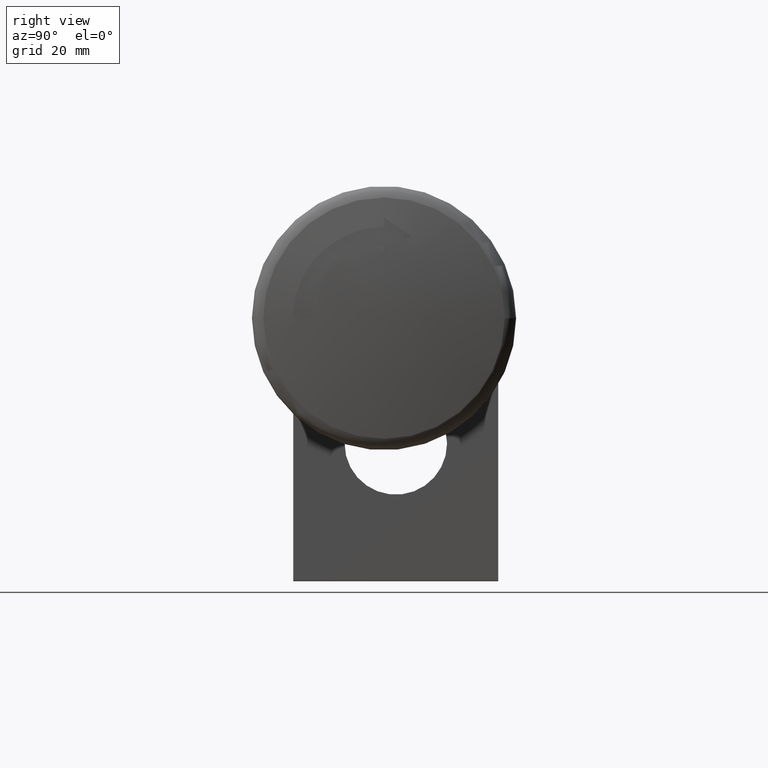
[diagram: clean part render]
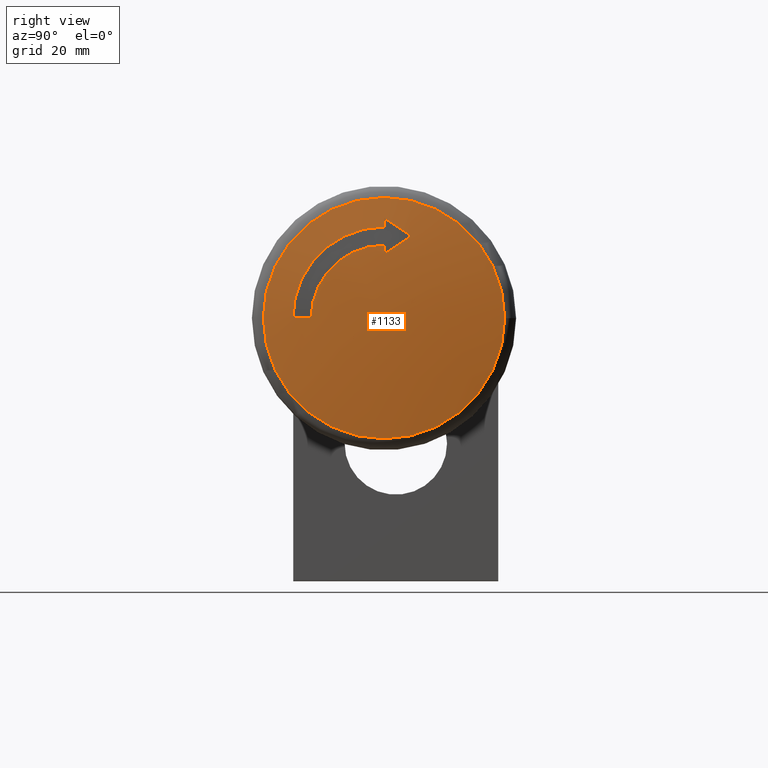
[diagram: same view with one face highlighted and labeled with its STEP entity id]
A machine part, right view. The second image highlights one B-rep face of the part: STEP entity #1133.
In plain terms, the highlighted spherical surface has radius 173 mm.
Its self-contained STEP definition (entity closure, byte-faithful):
#183=CARTESIAN_POINT('',(45.668461762672550,-19.495611931044859,16.0));
#184=VERTEX_POINT('',#183);
#185=CARTESIAN_POINT('',(45.668461762672550,-35.495611931044870,5.228103E-015));
#186=VERTEX_POINT('',#185);
#187=CARTESIAN_POINT('',(45.668461762672550,-19.495611931044870,0.0));
#188=DIRECTION('',(1.0,0.0,0.0));
#189=DIRECTION('',(0.0,1.0,0.0));
#190=AXIS2_PLACEMENT_3D('',#187,#188,#189);
#191=CIRCLE('',#190,16.0);
#192=EDGE_CURVE('',#184,#186,#191,.T.);
#215=CARTESIAN_POINT('',(45.249977022641623,-39.495611931044870,6.535128E-015));
#216=VERTEX_POINT('',#215);
#217=CARTESIAN_POINT('',(-126.590064876781840,-19.495611931044870,0.0));
#218=DIRECTION('',(0.0,0.0,-1.0));
#219=DIRECTION('',(0.0,-1.0,0.0));
#220=AXIS2_PLACEMENT_3D('',#217,#218,#219);
#221=CIRCLE('',#220,172.999999999987320);
#222=EDGE_CURVE('',#186,#216,#221,.T.);
#240=CARTESIAN_POINT('',(45.249977022641623,-19.495611931044859,20.0));
#241=VERTEX_POINT('',#240);
#242=CARTESIAN_POINT('',(45.249977022641623,-19.495611931044870,0.0));
#243=DIRECTION('',(-1.0,0.0,0.0));
#244=DIRECTION('',(0.0,-1.0,0.0));
#245=AXIS2_PLACEMENT_3D('',#242,#243,#244);
#246=CIRCLE('',#245,20.0);
#247=EDGE_CURVE('',#216,#241,#246,.T.);
#265=CARTESIAN_POINT('',(45.005389608456845,-19.495611931044859,22.0));
#266=VERTEX_POINT('',#265);
#267=CARTESIAN_POINT('',(-126.590064876781840,-19.495611931044881,1.009116E-029));
#268=DIRECTION('',(0.0,-1.0,0.0));
#269=DIRECTION('',(0.0,0.0,1.0));
#270=AXIS2_PLACEMENT_3D('',#267,#268,#269);
#271=CIRCLE('',#270,172.999999999987320);
#272=EDGE_CURVE('',#241,#266,#271,.T.);
#290=CARTESIAN_POINT('',(45.842530649689373,-19.495611931044866,14.0));
#291=VERTEX_POINT('',#290);
#292=CARTESIAN_POINT('',(-126.590064876781840,-19.495611931044870,1.305360E-030));
#293=DIRECTION('',(0.0,-1.0,0.0));
#294=DIRECTION('',(0.0,0.0,1.0));
#295=AXIS2_PLACEMENT_3D('',#292,#293,#294);
#296=CIRCLE('',#295,172.999999999987320);
#297=EDGE_CURVE('',#291,#184,#296,.T.);
#315=CARTESIAN_POINT('',(45.366324943415322,-13.495611931044863,18.0));
#316=VERTEX_POINT('',#315);
#317=CARTESIAN_POINT('',(-126.590064876781840,-25.957150392583330,9.692307692307697));
#318=DIRECTION('',(0.0,0.554700196225228,-0.832050294337844));
#319=DIRECTION('',(0.0,-0.832050294337844,-0.554700196225229));
#320=AXIS2_PLACEMENT_3D('',#317,#318,#319);
#321=CIRCLE('',#320,172.607380179131670);
#322=EDGE_CURVE('',#316,#291,#321,.T.);
#340=CARTESIAN_POINT('',(-126.590064876781840,-9.341765777198706,15.230769230769223));
#341=DIRECTION('',(0.0,0.554700196225230,0.832050294337843));
#342=DIRECTION('',(0.0,0.832050294337843,-0.554700196225230));
#343=AXIS2_PLACEMENT_3D('',#340,#341,#342);
#344=CIRCLE('',#343,172.028843735341920);
#345=EDGE_CURVE('',#266,#316,#344,.T.);
#1101=CARTESIAN_POINT('',(44.369906480807408,6.993785823677257,0.0));
#1102=VERTEX_POINT('',#1101);
#1103=CARTESIAN_POINT('',(44.369906480807408,-19.495611931044870,0.0));
#1104=DIRECTION('',(1.0,0.0,0.0));
#1105=DIRECTION('',(0.0,1.0,0.0));
#1106=AXIS2_PLACEMENT_3D('',#1103,#1104,#1105);
#1107=CIRCLE('',#1106,26.489397754722130);
#1108=EDGE_CURVE('',#1102,#1102,#1107,.T.);
#1116=CARTESIAN_POINT('',(-126.590064876781840,-19.495611931044870,0.0));
#1117=DIRECTION('',(0.0,0.0,1.0));
#1118=DIRECTION('',(1.0,0.0,0.0));
#1119=AXIS2_PLACEMENT_3D('',#1116,#1117,#1118);
#1120=SPHERICAL_SURFACE('',#1119,172.999999999987320);
#1121=ORIENTED_EDGE('',*,*,#192,.T.);
#1122=ORIENTED_EDGE('',*,*,#222,.T.);
#1123=ORIENTED_EDGE('',*,*,#247,.T.);
#1124=ORIENTED_EDGE('',*,*,#272,.T.);
#1125=ORIENTED_EDGE('',*,*,#345,.T.);
#1126=ORIENTED_EDGE('',*,*,#322,.T.);
#1127=ORIENTED_EDGE('',*,*,#297,.T.);
#1128=EDGE_LOOP('',(#1121,#1122,#1123,#1124,#1125,#1126,#1127));
#1129=FACE_OUTER_BOUND('',#1128,.T.);
#1130=ORIENTED_EDGE('',*,*,#1108,.T.);
#1131=EDGE_LOOP('',(#1130));
#1132=FACE_BOUND('',#1131,.T.);
#1133=ADVANCED_FACE('',(#1129,#1132),#1120,.T.);